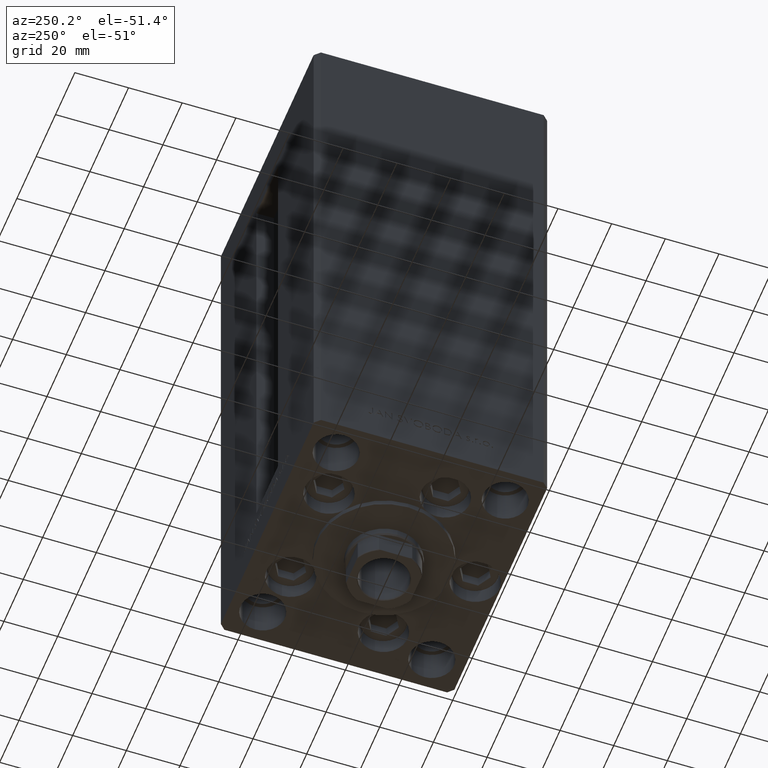
[diagram: clean part render]
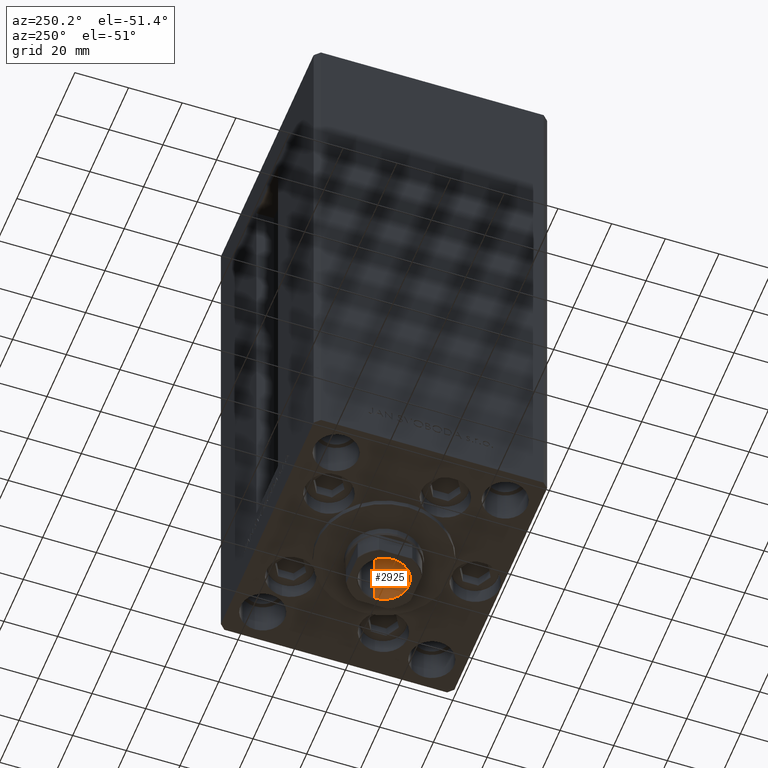
[diagram: same view with one face highlighted and labeled with its STEP entity id]
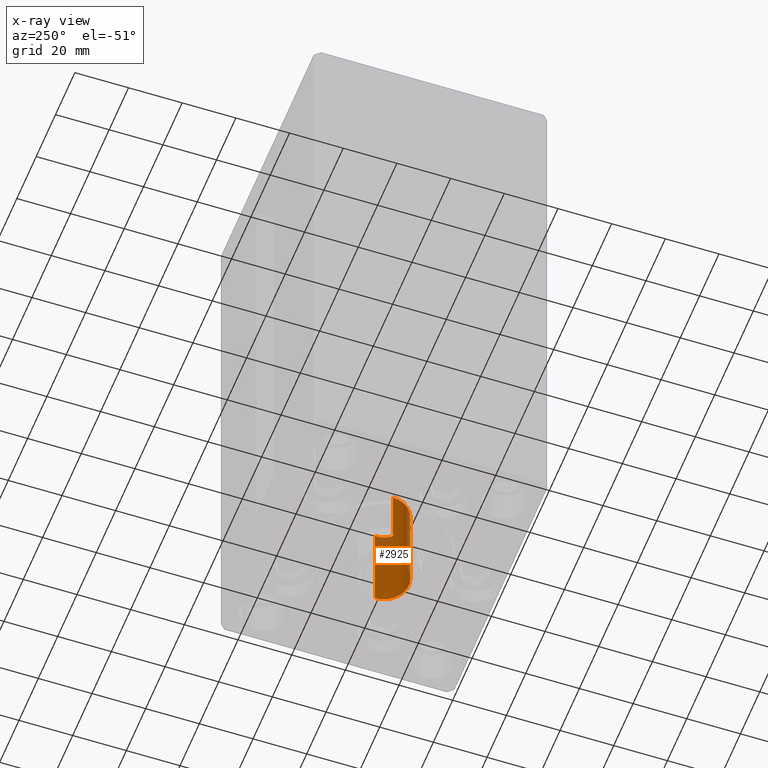
[diagram: x-ray of the same camera — body ghosted, the highlighted face saturated]
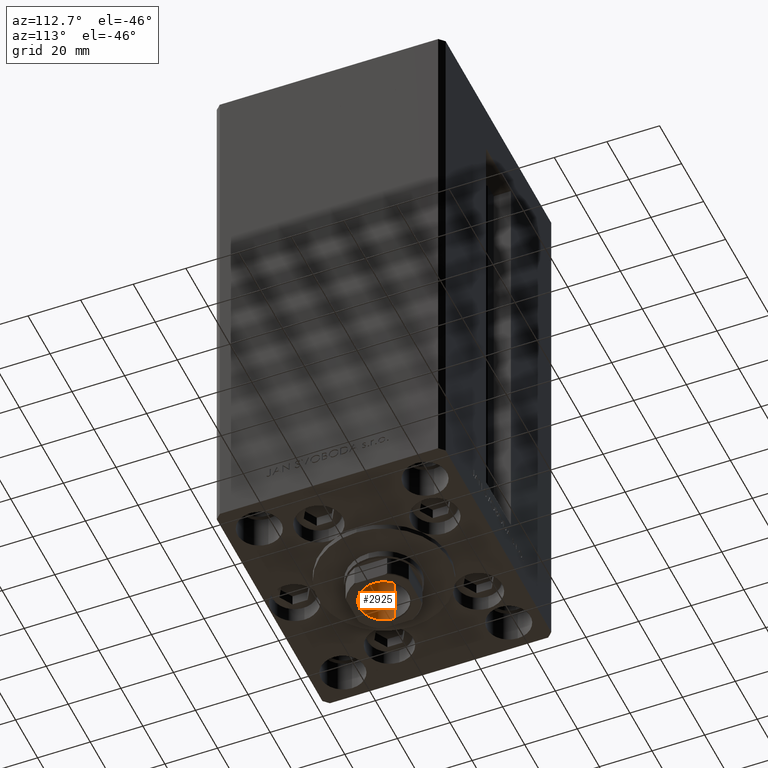
[diagram: same view with one face highlighted and labeled with its STEP entity id]
A machine part, auxiliary view. The second image highlights one B-rep face of the part: STEP entity #2925.
The next image is the same camera in x-ray: the body ghosted, the highlighted face saturated — about 14% of this face is hidden behind the body in this view.
A second angle (auxiliary view) of the same face is appended — the face is thin or edge-on in the first view.
In plain terms, the highlighted cylindrical surface (edge-blend (fillet) strip) has radius 9.25 mm, axis along (0, 0, -1).
Its self-contained STEP definition (entity closure, byte-faithful):
#2860 = EDGE_CURVE ( 'NONE', #27329, #14096, #43032, .T. ) ;
#2925 = ADVANCED_FACE ( 'NONE', ( #40290 ), #29361, .F. ) ;
#4608 = VECTOR ( 'NONE', #27012, 1000.000000000000000 ) ;
#6662 = AXIS2_PLACEMENT_3D ( 'NONE', #48475, #14172, #33325 ) ;
#8967 = DIRECTION ( 'NONE',  ( -0.000000000000000000, -0.000000000000000000, 1.000000000000000000 ) ) ;
#14096 = VERTEX_POINT ( 'NONE', #41942 ) ;
#14172 = DIRECTION ( 'NONE',  ( -0.000000000000000000, -0.000000000000000000, 1.000000000000000000 ) ) ;
#15421 = EDGE_CURVE ( 'NONE', #20340, #27329, #47533, .T. ) ;
#17763 = ORIENTED_EDGE ( 'NONE', *, *, #2860, .F. ) ;
#19762 = AXIS2_PLACEMENT_3D ( 'NONE', #30888, #8967, #34864 ) ;
#20340 = VERTEX_POINT ( 'NONE', #32840 ) ;
#20711 = EDGE_LOOP ( 'NONE', ( #41493, #35918, #37683, #17763 ) ) ;
#21158 = CARTESIAN_POINT ( 'NONE',  ( 9.249999999999996447, 0.000000000000000000, 185.2500000000000000 ) ) ;
#23037 = CARTESIAN_POINT ( 'NONE',  ( -9.249999999999996447, 1.132798289211301304E-15, 185.2500000000000000 ) ) ;
#24232 = DIRECTION ( 'NONE',  ( 1.000000000000000000, 0.000000000000000000, 0.000000000000000000 ) ) ;
#24405 = DIRECTION ( 'NONE',  ( -0.000000000000000000, -0.000000000000000000, 1.000000000000000000 ) ) ;
#26107 = CARTESIAN_POINT ( 'NONE',  ( 9.249999999999994671, 0.000000000000000000, 150.2500000000000000 ) ) ;
#26611 = EDGE_CURVE ( 'NONE', #33752, #14096, #32381, .T. ) ;
#27012 = DIRECTION ( 'NONE',  ( -0.000000000000000000, -0.000000000000000000, 1.000000000000000000 ) ) ;
#27329 = VERTEX_POINT ( 'NONE', #26107 ) ;
#29361 = CYLINDRICAL_SURFACE ( 'NONE', #6662, 9.249999999999996447 ) ;
#29721 = VECTOR ( 'NONE', #24405, 1000.000000000000000 ) ;
#30888 = CARTESIAN_POINT ( 'NONE',  ( 0.000000000000000000, 0.000000000000000000, 150.2500000000000000 ) ) ;
#32223 = EDGE_CURVE ( 'NONE', #20340, #33752, #37943, .T. ) ;
#32381 = CIRCLE ( 'NONE', #33947, 9.249999999999996447 ) ;
#32840 = CARTESIAN_POINT ( 'NONE',  ( -9.249999999999994671, 1.132798289211300909E-15, 150.2500000000000000 ) ) ;
#33325 = DIRECTION ( 'NONE',  ( 1.000000000000000000, 0.000000000000000000, 0.000000000000000000 ) ) ;
#33752 = VERTEX_POINT ( 'NONE', #33958 ) ;
#33947 = AXIS2_PLACEMENT_3D ( 'NONE', #38408, #43114, #24232 ) ;
#33958 = CARTESIAN_POINT ( 'NONE',  ( -9.249999999999996447, 1.132798289211301304E-15, 184.9499999999999602 ) ) ;
#34864 = DIRECTION ( 'NONE',  ( 1.000000000000000000, 0.000000000000000000, 0.000000000000000000 ) ) ;
#35918 = ORIENTED_EDGE ( 'NONE', *, *, #32223, .T. ) ;
#37683 = ORIENTED_EDGE ( 'NONE', *, *, #26611, .T. ) ;
#37943 = LINE ( 'NONE', #23037, #4608 ) ;
#38408 = CARTESIAN_POINT ( 'NONE',  ( 0.000000000000000000, 0.000000000000000000, 184.9499999999999602 ) ) ;
#40290 = FACE_OUTER_BOUND ( 'NONE', #20711, .T. ) ;
#41493 = ORIENTED_EDGE ( 'NONE', *, *, #15421, .F. ) ;
#41942 = CARTESIAN_POINT ( 'NONE',  ( 9.249999999999996447, 0.000000000000000000, 184.9499999999999602 ) ) ;
#43032 = LINE ( 'NONE', #21158, #29721 ) ;
#43114 = DIRECTION ( 'NONE',  ( 0.000000000000000000, 0.000000000000000000, 1.000000000000000000 ) ) ;
#47533 = CIRCLE ( 'NONE', #19762, 9.249999999999994671 ) ;
#48475 = CARTESIAN_POINT ( 'NONE',  ( 0.000000000000000000, 0.000000000000000000, 185.2500000000000000 ) ) ;